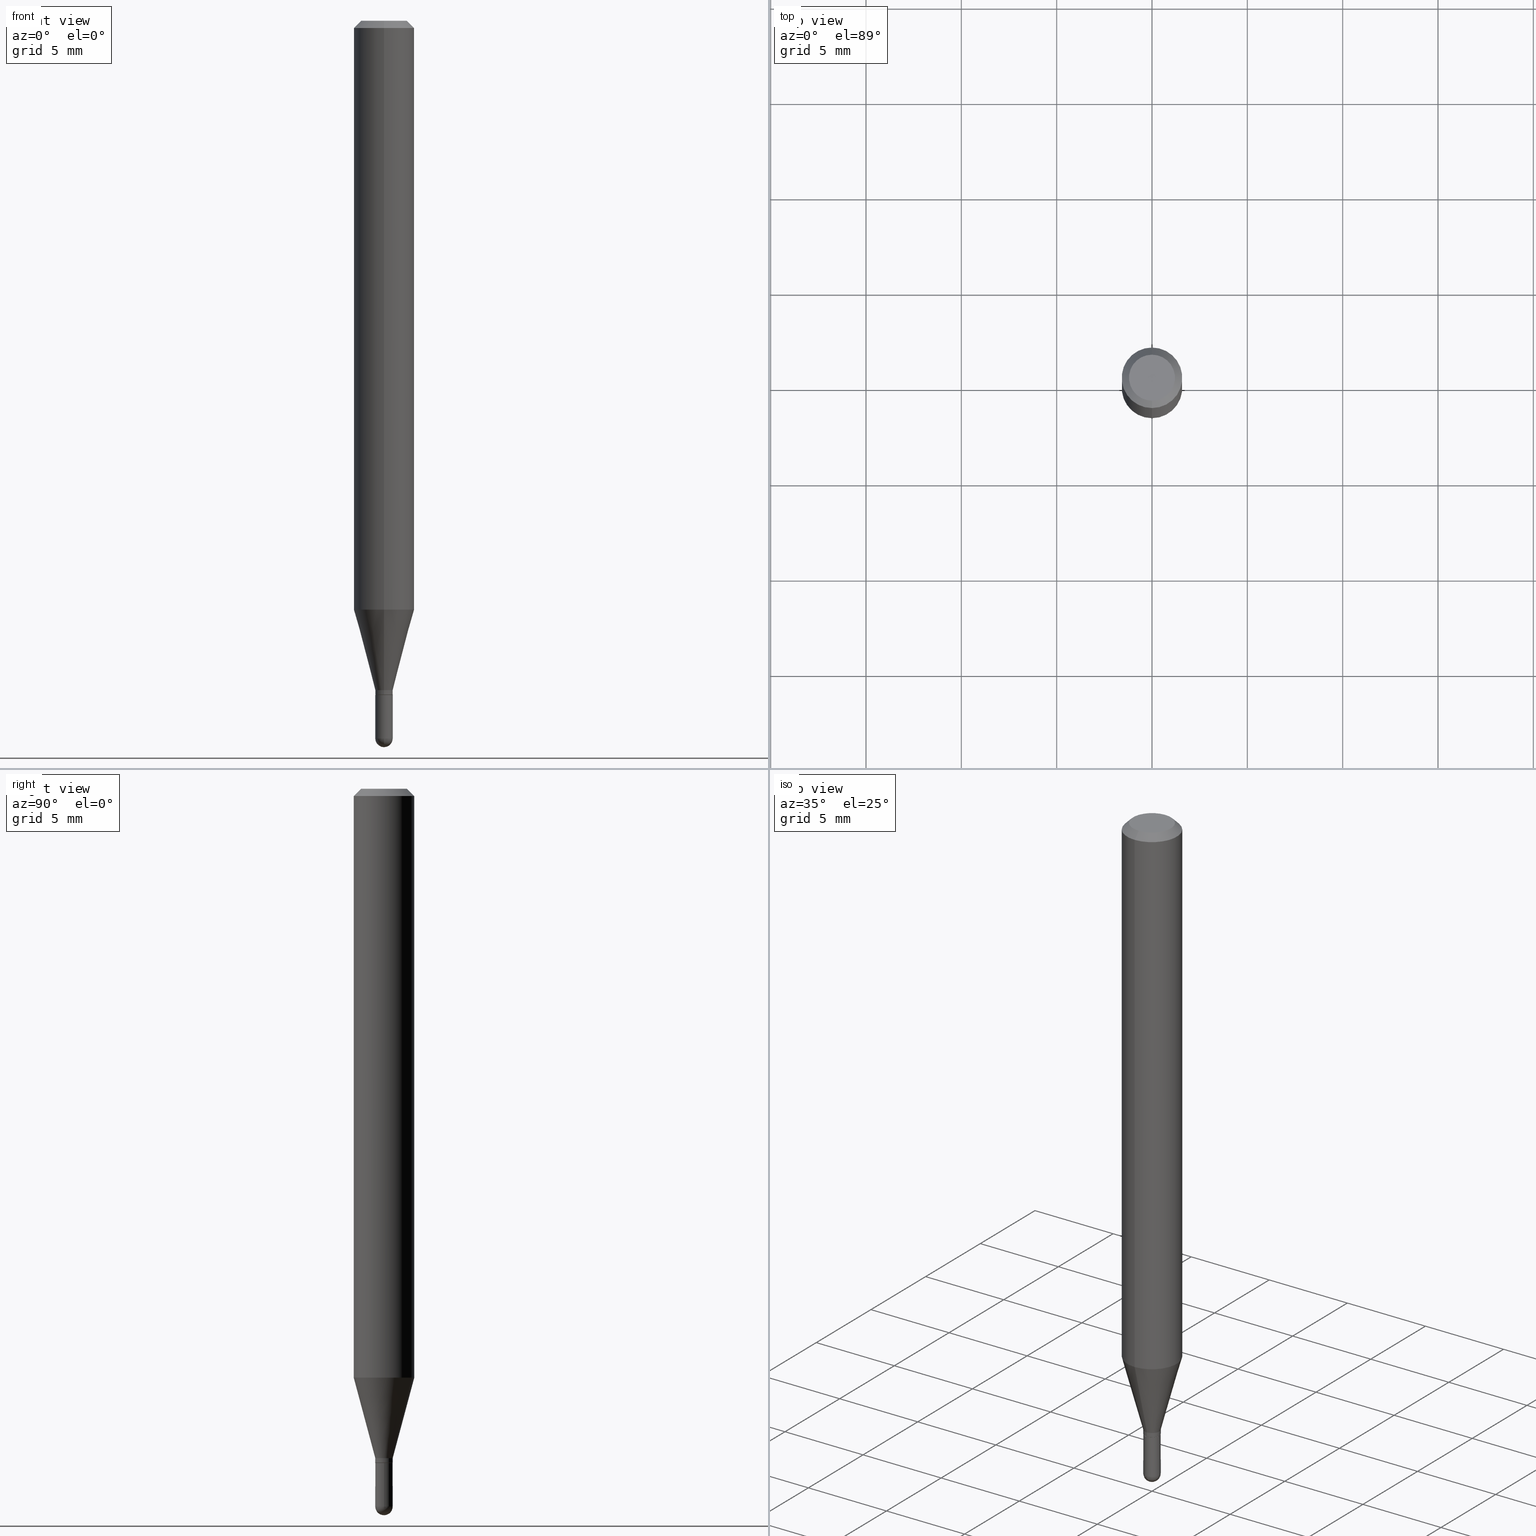
[diagram: canonical four-view strip — front | top / right | iso, engineering-drawing reading convention]
A machine part, canonical four-view strip (front | top / right | iso — engineering-drawing reading convention). The complete STEP part file that produces these views, byte-faithful:
ISO-10303-21;
HEADER;
FILE_DESCRIPTION (( 'STEP AP203' ),
    '1' );
FILE_NAME ('00474.STEP',
    '2024-03-07T17:59:20',
    ( '' ),
    ( '' ),
    'SwSTEP 2.0',
    'SolidWorks 2023',
    '' );
FILE_SCHEMA (( 'CONFIG_CONTROL_DESIGN' ));
ENDSEC;

DATA;
#1 = ORIENTED_EDGE ( 'NONE', *, *, #165, .F. ) ;
#2 = DIRECTION ( 'NONE',  ( -2.445468806185136597E-29, 3.491481338843145583E-15, 1.000000000000000000 ) ) ;
#3 = EDGE_CURVE ( 'NONE', #39, #217, #180, .T. ) ;
#4 = AXIS2_PLACEMENT_3D ( 'NONE', #68, #462, #223 ) ;
#5 = LINE ( 'NONE', #82, #200 ) ;
#6 = CARTESIAN_POINT ( 'NONE',  ( 0.000000000000000000, 0.000000000000000000, 0.000000000000000000 ) ) ;
#7 = AXIS2_PLACEMENT_3D ( 'NONE', #48, #290, #20 ) ;
#8 = LINE ( 'NONE', #375, #111 ) ;
#9 = ORIENTED_EDGE ( 'NONE', *, *, #18, .T. ) ;
#10 = APPROVAL ( #340, 'UNSPECIFIED' ) ;
#11 = DIRECTION ( 'NONE',  ( 1.000000000000000000, -6.982962677686266711E-15, 4.876176775795935232E-29 ) ) ;
#12 = VERTEX_POINT ( 'NONE', #381 ) ;
#13 = ORGANIZATION ( 'UNSPECIFIED', 'UNSPECIFIED', '' ) ;
#14 = DIRECTION ( 'NONE',  ( -2.445459386778568343E-29, 3.491494827969470629E-15, 1.000000000000000000 ) ) ;
#15 = ORIENTED_EDGE ( 'NONE', *, *, #495, .F. ) ;
#16 = CARTESIAN_POINT ( 'NONE',  ( 3.668189080167854844E-31, -5.237242241954208804E-17, -0.01500000000000000812 ) ) ;
#17 = ORIENTED_EDGE ( 'NONE', *, *, #75, .F. ) ;
#18 = EDGE_CURVE ( 'NONE', #358, #248, #92, .T. ) ;
#19 = CIRCLE ( 'NONE', #227, 0.04749999999999999362 ) ;
#20 = DIRECTION ( 'NONE',  ( -6.982962677686265922E-15, -1.000000000000000000, 3.491494827969470629E-15 ) ) ;
#21 = ORIENTED_EDGE ( 'NONE', *, *, #501, .T. ) ;
#22 = PERSON_AND_ORGANIZATION ( #396, #13 ) ;
#23 = CARTESIAN_POINT ( 'NONE',  ( 3.622645471445850223E-29, -5.176579708404007627E-15, -1.482000000000000206 ) ) ;
#24 = CARTESIAN_POINT ( 'NONE',  ( 3.668189080167854844E-31, -5.237242241954208804E-17, -0.01500000000000000812 ) ) ;
#25 = COORDINATED_UNIVERSAL_TIME_OFFSET ( 5, 0, .BEHIND. ) ;
#26 = DIRECTION ( 'NONE',  ( -2.445468806185136597E-29, 3.491481338843145583E-15, 1.000000000000000000 ) ) ;
#27 = DATE_AND_TIME ( #301, #427 ) ;
#28 = DIRECTION ( 'NONE',  ( -6.982962677686265922E-15, -1.000000000000000000, 4.370956789862821150E-15 ) ) ;
#29 = APPROVAL_ROLE ( '' ) ;
#30 = AXIS2_PLACEMENT_3D ( 'NONE', #357, #2, #11 ) ;
#31 = DIRECTION ( 'NONE',  ( -2.445459386778568343E-29, 3.491494827969470629E-15, 1.000000000000000000 ) ) ;
#32 = CIRCLE ( 'NONE', #154, 0.01799999999999999517 ) ;
#33 = CARTESIAN_POINT ( 'NONE',  ( 3.404079466395767039E-29, -4.860160800533503009E-15, -1.392000000000000126 ) ) ;
#34 = CARTESIAN_POINT ( 'NONE',  ( 1.261213355974515202E-16, 0.01749999999999514097, -1.392000000000000126 ) ) ;
#35 = ORIENTED_EDGE ( 'NONE', *, *, #54, .F. ) ;
#36 = EDGE_CURVE ( 'NONE', #133, #316, #19, .T. ) ;
#37 = DIRECTION ( 'NONE',  ( -6.982962677686265133E-15, -1.000000000000000000, 3.491494827969470629E-15 ) ) ;
#38 = AXIS2_PLACEMENT_3D ( 'NONE', #179, #211, #334 ) ;
#39 = VERTEX_POINT ( 'NONE', #145 ) ;
#40 = DIRECTION ( 'NONE',  ( -6.982962677686265922E-15, -1.000000000000000000, 0.000000000000000000 ) ) ;
#41 = ORIENTED_EDGE ( 'NONE', *, *, #107, .F. ) ;
#42 = AXIS2_PLACEMENT_3D ( 'NONE', #341, #338, #431 ) ;
#43 = DIRECTION ( 'NONE',  ( -6.982962677686265133E-15, -1.000000000000000000, 0.000000000000000000 ) ) ;
#44 = CARTESIAN_POINT ( 'NONE',  ( 3.668189080167854844E-31, -5.237242241954208804E-17, -0.01500000000000000812 ) ) ;
#45 = AXIS2_PLACEMENT_3D ( 'NONE', #397, #360, #317 ) ;
#46 = EDGE_LOOP ( 'NONE', ( #126, #492, #318, #17 ) ) ;
#47 = EDGE_CURVE ( 'NONE', #12, #490, #269, .T. ) ;
#48 = CARTESIAN_POINT ( 'NONE',  ( 3.404079466395767039E-29, -4.860160800533503009E-15, -1.392000000000000126 ) ) ;
#49 = DIRECTION ( 'NONE',  ( -2.445459386778568343E-29, 3.491494827969470629E-15, 1.000000000000000000 ) ) ;
#50 = CIRCLE ( 'NONE', #4, 0.01799999999999999517 ) ;
#51 = DIRECTION ( 'NONE',  ( 1.000000000000000000, -6.982962677686280121E-15, 0.000000000000000000 ) ) ;
#52 = ORIENTED_EDGE ( 'NONE', *, *, #102, .T. ) ;
#53 = CONICAL_SURFACE ( 'NONE', #373, 0.06250000000000000000, 0.7853981633974483900 ) ;
#54 = EDGE_CURVE ( 'NONE', #133, #217, #426, .T. ) ;
#55 = DIRECTION ( 'NONE',  ( -2.445459386778568343E-29, 3.491494827969470629E-15, 1.000000000000000000 ) ) ;
#56 = ORIENTED_EDGE ( 'NONE', *, *, #205, .F. ) ;
#57 = VECTOR ( 'NONE', #166, 39.37007874015748143 ) ;
#58 = DIRECTION ( 'NONE',  ( -2.445468806185136597E-29, 3.491481338843145583E-15, 1.000000000000000000 ) ) ;
#59 = ORIENTED_EDGE ( 'NONE', *, *, #382, .T. ) ;
#60 = ORIENTED_EDGE ( 'NONE', *, *, #64, .T. ) ;
#61 = DATE_AND_TIME ( #103, #487 ) ;
#62 = AXIS2_PLACEMENT_3D ( 'NONE', #298, #324, #458 ) ;
#63 = CARTESIAN_POINT ( 'NONE',  ( 3.402856736702377840E-29, -4.858415053119519559E-15, -1.391500000000000181 ) ) ;
#64 = EDGE_CURVE ( 'NONE', #291, #39, #439, .T. ) ;
#65 = PERSON_AND_ORGANIZATION ( #396, #13 ) ;
#66 = DIRECTION ( 'NONE',  ( -6.982962677686265133E-15, -1.000000000000000000, 0.000000000000000000 ) ) ;
#67 = PERSON_AND_ORGANIZATION_ROLE ( 'classification_officer' ) ;
#68 = CARTESIAN_POINT ( 'NONE',  ( 3.624184770766373010E-29, -5.174375344165542471E-15, -1.482000000000000206 ) ) ;
#69 = EDGE_CURVE ( 'NONE', #274, #459, #50, .T. ) ;
#70 = DIRECTION ( 'NONE',  ( -6.982962677686265922E-15, -1.000000000000000000, 0.000000000000000000 ) ) ;
#71 = CONICAL_SURFACE ( 'NONE', #157, 0.01799999999999992231, 0.2617993877991502960 ) ;
#72 = DIRECTION ( 'NONE',  ( 1.000000000000000000, -6.982962677686279332E-15, 0.000000000000000000 ) ) ;
#73 = CARTESIAN_POINT ( 'NONE',  ( 3.622645471445850223E-29, -5.176579708404007627E-15, -1.482000000000000206 ) ) ;
#74 = DIMENSIONAL_EXPONENTS ( 1.000000000000000000, 0.000000000000000000, 0.000000000000000000, 0.000000000000000000, 0.000000000000000000, 0.000000000000000000, 0.000000000000000000 ) ;
#75 = EDGE_CURVE ( 'NONE', #206, #479, #101, .T. ) ;
#76 = FACE_OUTER_BOUND ( 'NONE', #137, .T. ) ;
#77 = ORIENTED_EDGE ( 'NONE', *, *, #278, .T. ) ;
#78 = PLANE ( 'NONE',  #45 ) ;
#79 = AXIS2_PLACEMENT_3D ( 'NONE', #98, #94, #254 ) ;
#80 = ORIENTED_EDGE ( 'NONE', *, *, #54, .T. ) ;
#81 = ADVANCED_FACE ( 'NONE', ( #350 ), #359, .T. ) ;
#82 = CARTESIAN_POINT ( 'NONE',  ( -4.287811248607203282E-16, -0.06250000000000005551, -0.01499999999999979128 ) ) ;
#83 = ORIENTED_EDGE ( 'NONE', *, *, #354, .F. ) ;
#84 = CARTESIAN_POINT ( 'NONE',  ( 3.404079466395767039E-29, -4.860160800533503009E-15, -1.392000000000000126 ) ) ;
#85 = ADVANCED_FACE ( 'NONE', ( #461 ), #104, .F. ) ;
#86 = ORIENTED_EDGE ( 'NONE', *, *, #36, .F. ) ;
#87 = CC_DESIGN_APPROVAL ( #440, ( #344 ) ) ;
#88 = DIRECTION ( 'NONE',  ( -6.982962677686265922E-15, -1.000000000000000000, 0.000000000000000000 ) ) ;
#89 = ORIENTED_EDGE ( 'NONE', *, *, #463, .T. ) ;
#90 = PLANE ( 'NONE',  #7 ) ;
#91 = ORIENTED_EDGE ( 'NONE', *, *, #64, .F. ) ;
#92 = CIRCLE ( 'NONE', #352, 0.01799999999999995701 ) ;
#93 = EDGE_CURVE ( 'NONE', #479, #12, #367, .T. ) ;
#94 = DIRECTION ( 'NONE',  ( -2.445459386778568343E-29, 3.491494827969470629E-15, 1.000000000000000000 ) ) ;
#95 = ORIENTED_EDGE ( 'NONE', *, *, #310, .F. ) ;
#96 = DIRECTION ( 'NONE',  ( -6.982962677686266711E-15, -1.000000000000000000, 3.491494827969471024E-15 ) ) ;
#97 = EDGE_LOOP ( 'NONE', ( #244, #239, #160, #421 ) ) ;
#98 = CARTESIAN_POINT ( 'NONE',  ( 3.379624872527981378E-29, -4.825245852253809549E-15, -1.382000000000000117 ) ) ;
#99 = CARTESIAN_POINT ( 'NONE',  ( 4.440892098500625669E-16, 0.06250000000000000000, -2.182184267480919143E-16 ) ) ;
#100 = LENGTH_MEASURE_WITH_UNIT ( LENGTH_MEASURE( 0.02539999999999999897 ), #247 );
#101 = LINE ( 'NONE', #229, #413 ) ;
#102 = EDGE_CURVE ( 'NONE', #248, #274, #32, .T. ) ;
#103 = CALENDAR_DATE ( 2024, 7, 3 ) ;
#104 = PLANE ( 'NONE',  #187 ) ;
#105 = APPLICATION_PROTOCOL_DEFINITION ( 'international standard', 'config_control_design', 1994, #134 ) ;
#106 = CARTESIAN_POINT ( 'NONE',  ( 3.622645471445850223E-29, -5.176579708404007627E-15, -1.482000000000000206 ) ) ;
#107 = EDGE_CURVE ( 'NONE', #490, #39, #264, .T. ) ;
#108 = DATE_TIME_ROLE ( 'classification_date' ) ;
#109 = DIRECTION ( 'NONE',  ( 6.982962677686265922E-15, 1.000000000000000000, -3.483106191921935554E-15 ) ) ;
#110 = LINE ( 'NONE', #150, #252 ) ;
#111 = VECTOR ( 'NONE', #258, 39.37007874015748143 ) ;
#112 = VECTOR ( 'NONE', #196, 39.37007874015748143 ) ;
#113 = CARTESIAN_POINT ( 'NONE',  ( 0.000000000000000000, 0.000000000000000000, 0.000000000000000000 ) ) ;
#114 = APPROVAL ( #422, 'UNSPECIFIED' ) ;
#115 = EDGE_LOOP ( 'NONE', ( #83, #320 ) ) ;
#116 = CARTESIAN_POINT ( 'NONE',  ( 0.000000000000000000, 0.000000000000000000, 0.000000000000000000 ) ) ;
#117 = CARTESIAN_POINT ( 'NONE',  ( -0.01799999999999999517, -4.889360991480781903E-15, -1.482000000000000206 ) ) ;
#118 = ORIENTED_EDGE ( 'NONE', *, *, #444, .T. ) ;
#119 = CIRCLE ( 'NONE', #398, 0.06250000000000000000 ) ;
#120 = DIRECTION ( 'NONE',  ( -2.445459386778568343E-29, 3.491494827969470629E-15, 1.000000000000000000 ) ) ;
#121 = AXIS2_PLACEMENT_3D ( 'NONE', #33, #162, #40 ) ;
#122 = ORIENTED_EDGE ( 'NONE', *, *, #278, .F. ) ;
#123 = CC_DESIGN_PERSON_AND_ORGANIZATION_ASSIGNMENT ( #498, #67, ( #213 ) ) ;
#124 = DIRECTION ( 'NONE',  ( -2.445468806185136597E-29, 3.491481338843145583E-15, 1.000000000000000000 ) ) ;
#125 = AXIS2_PLACEMENT_3D ( 'NONE', #6, #120, #243 ) ;
#126 = ORIENTED_EDGE ( 'NONE', *, *, #354, .T. ) ;
#127 = AXIS2_PLACEMENT_3D ( 'NONE', #63, #393, #70 ) ;
#128 = DIRECTION ( 'NONE',  ( -2.445459386778568343E-29, 3.491494827969470629E-15, 1.000000000000000000 ) ) ;
#129 = VERTEX_POINT ( 'NONE', #309 ) ;
#130 = DIRECTION ( 'NONE',  ( -6.982962677686265922E-15, -1.000000000000000000, 0.000000000000000000 ) ) ;
#131 = MANIFOLD_SOLID_BREP ( 'Body-Move/Copy2[1]', #478 ) ;
#132 = AXIS2_PLACEMENT_3D ( 'NONE', #295, #128, #286 ) ;
#133 = VERTEX_POINT ( 'NONE', #429 ) ;
#134 = APPLICATION_CONTEXT ( 'configuration controlled 3d designs of mechanical parts and assemblies' ) ;
#135 = EDGE_CURVE ( 'NONE', #129, #366, #403, .T. ) ;
#136 = CARTESIAN_POINT ( 'NONE',  ( 2.859934511434718867E-16, 0.01799999999999509631, -1.382000000000000117 ) ) ;
#137 = EDGE_LOOP ( 'NONE', ( #122, #329, #21, #364, #379 ) ) ;
#138 = AXIS2_PLACEMENT_3D ( 'NONE', #24, #267, #109 ) ;
#139 = CARTESIAN_POINT ( 'NONE',  ( 3.402856736702377840E-29, -4.858415053119519559E-15, -1.391500000000000181 ) ) ;
#140 = ORIENTED_EDGE ( 'NONE', *, *, #382, .F. ) ;
#141 = CYLINDRICAL_SURFACE ( 'NONE', #475, 0.06250000000000000000 ) ;
#142 = ORIENTED_EDGE ( 'NONE', *, *, #420, .T. ) ;
#143 = ADVANCED_FACE ( 'NONE', ( #471 ), #161, .T. ) ;
#144 = DATE_AND_TIME ( #183, #504 ) ;
#145 = CARTESIAN_POINT ( 'NONE',  ( 4.440892098500920998E-16, 0.06249999999999573952, -1.215923739063185627 ) ) ;
#146 = APPROVAL_DATE_TIME ( #61, #10 ) ;
#147 = LINE ( 'NONE', #346, #168 ) ;
#148 = PERSON_AND_ORGANIZATION ( #396, #13 ) ;
#149 = LOCAL_TIME ( 12, 59, 20.00000000000000000, #263 ) ;
#150 = CARTESIAN_POINT ( 'NONE',  ( -1.256933281983522259E-16, -0.01799999999999992231, 6.284690690345019750E-17 ) ) ;
#151 = CC_DESIGN_PERSON_AND_ORGANIZATION_ASSIGNMENT ( #65, #222, ( #240 ) ) ;
#152 = APPROVAL_STATUS ( 'not_yet_approved' ) ;
#153 = DIRECTION ( 'NONE',  ( 6.982962677686265922E-15, 1.000000000000000000, -3.491494827969470629E-15 ) ) ;
#154 = AXIS2_PLACEMENT_3D ( 'NONE', #507, #26, #385 ) ;
#155 = CARTESIAN_POINT ( 'NONE',  ( 2.973492121298961369E-29, -4.245391446144412231E-15, -1.215923739063185405 ) ) ;
#156 = CARTESIAN_POINT ( 'NONE',  ( -3.773273898774340269E-16, -0.04749999999999999362, 1.569863254702192129E-16 ) ) ;
#157 = AXIS2_PLACEMENT_3D ( 'NONE', #482, #273, #474 ) ;
#158 = EDGE_CURVE ( 'NONE', #358, #459, #203, .T. ) ;
#159 = FACE_OUTER_BOUND ( 'NONE', #255, .T. ) ;
#160 = ORIENTED_EDGE ( 'NONE', *, *, #69, .F. ) ;
#161 = CONICAL_SURFACE ( 'NONE', #432, 0.01799999999999992231, 0.2617993877991502960 ) ;
#162 = DIRECTION ( 'NONE',  ( -2.445459386778568343E-29, 3.491494827969470629E-15, 1.000000000000000000 ) ) ;
#163 = CARTESIAN_POINT ( 'NONE',  ( -0.01799999999999999864, 1.278976924368180238E-16, -8.854083162458829188E-31 ) ) ;
#164 = APPROVAL_PERSON_ORGANIZATION ( #22, #114, #220 ) ;
#165 = EDGE_CURVE ( 'NONE', #479, #300, #110, .T. ) ;
#166 = DIRECTION ( 'NONE',  ( 5.024295867788190974E-15, 0.7071067811865681119, 0.7071067811865270336 ) ) ;
#167 = DIRECTION ( 'NONE',  ( -2.445459386778568343E-29, 3.491494827969470629E-15, 1.000000000000000000 ) ) ;
#168 = VECTOR ( 'NONE', #506, 39.37007874015748143 ) ;
#169 = ORIENTED_EDGE ( 'NONE', *, *, #189, .F. ) ;
#170 = ADVANCED_FACE ( 'NONE', ( #235 ), #184, .T. ) ;
#171 = DIRECTION ( 'NONE',  ( -6.982962677686265922E-15, -1.000000000000000000, 3.491494827969470629E-15 ) ) ;
#172 = EDGE_LOOP ( 'NONE', ( #281, #142, #221, #15 ) ) ;
#173 = CARTESIAN_POINT ( 'NONE',  ( 3.667433559617443502E-29, -5.238324190383952333E-15, -1.500000000000000222 ) ) ;
#174 = AXIS2_PLACEMENT_3D ( 'NONE', #113, #124, #448 ) ;
#175 = ORIENTED_EDGE ( 'NONE', *, *, #205, .T. ) ;
#176 = FACE_OUTER_BOUND ( 'NONE', #115, .T. ) ;
#177 = ORIENTED_EDGE ( 'NONE', *, *, #444, .F. ) ;
#178 = AXIS2_PLACEMENT_3D ( 'NONE', #503, #186, #467 ) ;
#179 = CARTESIAN_POINT ( 'NONE',  ( 3.668189080167854844E-31, -5.237242241954208804E-17, -0.01500000000000000812 ) ) ;
#180 = LINE ( 'NONE', #99, #250 ) ;
#181 = EDGE_CURVE ( 'NONE', #39, #291, #219, .T. ) ;
#182 = VECTOR ( 'NONE', #167, 39.37007874015748143 ) ;
#183 = CALENDAR_DATE ( 2024, 7, 3 ) ;
#184 = SPHERICAL_SURFACE ( 'NONE', #270, 0.01799999999999995701 ) ;
#185 = PERSON_AND_ORGANIZATION_ROLE ( 'design_owner' ) ;
#186 = DIRECTION ( 'NONE',  ( -1.000000000000000000, 7.105427357601001070E-15, -4.926315508542082329E-29 ) ) ;
#187 = AXIS2_PLACEMENT_3D ( 'NONE', #386, #232, #153 ) ;
#188 = APPROVAL_DATE_TIME ( #225, #440 ) ;
#189 = EDGE_CURVE ( 'NONE', #335, #366, #147, .T. ) ;
#190 = CARTESIAN_POINT ( 'NONE',  ( 1.278976924368512546E-16, 0.01799999999999509631, -1.382000000000000117 ) ) ;
#191 = APPROVAL_ROLE ( '' ) ;
#192 = DIRECTION ( 'NONE',  ( 4.937700262164548042E-15, 0.7071067811865451302, -0.7071067811865499042 ) ) ;
#193 = CIRCLE ( 'NONE', #259, 0.04749999999999999362 ) ;
#194 = CALENDAR_DATE ( 2024, 7, 3 ) ;
#195 = CARTESIAN_POINT ( 'NONE',  ( 3.404092578209710223E-29, -4.860142023669658418E-15, -1.392000000000000126 ) ) ;
#196 = DIRECTION ( 'NONE',  ( -2.445468806185136877E-29, 3.491481338843145188E-15, 1.000000000000000000 ) ) ;
#197 = ADVANCED_FACE ( 'NONE', ( #304 ), #434, .T. ) ;
#198 = CARTESIAN_POINT ( 'NONE',  ( 0.01799999999999999517, -5.142952012115953829E-15, -1.482000000000000206 ) ) ;
#199 = EDGE_LOOP ( 'NONE', ( #95, #86, #80, #246 ) ) ;
#200 = VECTOR ( 'NONE', #511, 39.37007874015748143 ) ;
#201 = FACE_OUTER_BOUND ( 'NONE', #293, .T. ) ;
#202 = ORIENTED_EDGE ( 'NONE', *, *, #463, .F. ) ;
#203 = CIRCLE ( 'NONE', #178, 0.01799999999999995701 ) ;
#204 = FACE_OUTER_BOUND ( 'NONE', #212, .T. ) ;
#205 = EDGE_CURVE ( 'NONE', #366, #129, #332, .T. ) ;
#206 = VERTEX_POINT ( 'NONE', #445 ) ;
#207 = DIRECTION ( 'NONE',  ( -6.982962677686265922E-15, -1.000000000000000000, 0.000000000000000000 ) ) ;
#208 = ORIENTED_EDGE ( 'NONE', *, *, #3, .F. ) ;
#209 = DIRECTION ( 'NONE',  ( -2.445459386778568343E-29, 3.491494827969470629E-15, 1.000000000000000000 ) ) ;
#210 = ORIENTED_EDGE ( 'NONE', *, *, #287, .F. ) ;
#211 = DIRECTION ( 'NONE',  ( -2.445459386778568343E-29, 3.491494827969470629E-15, 1.000000000000000000 ) ) ;
#212 = EDGE_LOOP ( 'NONE', ( #175, #455 ) ) ;
#213 = SECURITY_CLASSIFICATION ( '', '', #261 ) ;
#214 = CARTESIAN_POINT ( 'NONE',  ( -1.278976924367816376E-16, -0.01800000000000515077, -1.482000000000000206 ) ) ;
#215 = ORIENTED_EDGE ( 'NONE', *, *, #481, .T. ) ;
#216 = CARTESIAN_POINT ( 'NONE',  ( 0.01799999999999999864, -4.985835351868011408E-15, -1.392000000000000126 ) ) ;
#217 = VERTEX_POINT ( 'NONE', #285 ) ;
#218 = ADVANCED_FACE ( 'NONE', ( #76 ), #399, .T. ) ;
#219 = CIRCLE ( 'NONE', #42, 0.06250000000000000000 ) ;
#220 = APPROVAL_ROLE ( '' ) ;
#221 = ORIENTED_EDGE ( 'NONE', *, *, #75, .T. ) ;
#222 = PERSON_AND_ORGANIZATION_ROLE ( 'creator' ) ;
#223 = DIRECTION ( 'NONE',  ( 1.000000000000000000, -6.982962677686280121E-15, 0.000000000000000000 ) ) ;
#224 = ADVANCED_FACE ( 'NONE', ( #279 ), #71, .T. ) ;
#225 = DATE_AND_TIME ( #311, #418 ) ;
#226 = DIRECTION ( 'NONE',  ( -4.937700262164674260E-15, -0.7071067811865632269, 0.7071067811865319186 ) ) ;
#227 = AXIS2_PLACEMENT_3D ( 'NONE', #411, #49, #499 ) ;
#228 = COORDINATED_UNIVERSAL_TIME_OFFSET ( 5, 0, .BEHIND. ) ;
#229 = CARTESIAN_POINT ( 'NONE',  ( -1.222018468594755936E-16, -0.01750000000000485889, -1.392000000000000126 ) ) ;
#230 =( CONVERSION_BASED_UNIT ( 'INCH', #100 ) LENGTH_UNIT ( ) NAMED_UNIT ( #74 ) );
#231 = CC_DESIGN_SECURITY_CLASSIFICATION ( #213, ( #344 ) ) ;
#232 = DIRECTION ( 'NONE',  ( 2.445459386778568062E-29, -3.491494827969470629E-15, -1.000000000000000000 ) ) ;
#233 = AXIS2_PLACEMENT_3D ( 'NONE', #116, #276, #37 ) ;
#234 = PRODUCT_DEFINITION_SHAPE ( 'NONE', 'NONE',  #240 ) ;
#235 = FACE_OUTER_BOUND ( 'NONE', #438, .T. ) ;
#236 = ADVANCED_FACE ( 'NONE', ( #355 ), #512, .T. ) ;
#237 = DIRECTION ( 'NONE',  ( 6.982962677686265922E-15, 1.000000000000000000, 0.000000000000000000 ) ) ;
#238 = LINE ( 'NONE', #163, #112 ) ;
#239 = ORIENTED_EDGE ( 'NONE', *, *, #158, .T. ) ;
#240 = PRODUCT_DEFINITION ( 'UNKNOWN', '', #344, #383 ) ;
#241 = DIRECTION ( 'NONE',  ( -2.445468806185136597E-29, 3.491481338843145583E-15, 1.000000000000000000 ) ) ;
#242 = ORIENTED_EDGE ( 'NONE', *, *, #430, .T. ) ;
#243 = DIRECTION ( 'NONE',  ( -6.982962677686265133E-15, -1.000000000000000000, 3.491494827969470629E-15 ) ) ;
#244 = ORIENTED_EDGE ( 'NONE', *, *, #18, .F. ) ;
#245 = CARTESIAN_POINT ( 'NONE',  ( 3.404092578209710223E-29, -4.860142023669658418E-15, -1.392000000000000126 ) ) ;
#246 = ORIENTED_EDGE ( 'NONE', *, *, #389, .T. ) ;
#247 =( LENGTH_UNIT ( ) NAMED_UNIT ( * ) SI_UNIT ( $, .METRE. ) );
#248 = VERTEX_POINT ( 'NONE', #319 ) ;
#249 = ADVANCED_FACE ( 'NONE', ( #509 ), #321, .T. ) ;
#250 = VECTOR ( 'NONE', #262, 39.37007874015748143 ) ;
#251 = DIRECTION ( 'NONE',  ( -2.445459386778568343E-29, 3.491494827969470629E-15, 1.000000000000000000 ) ) ;
#252 = VECTOR ( 'NONE', #31, 39.37007874015748143 ) ;
#253 = ORIENTED_EDGE ( 'NONE', *, *, #165, .T. ) ;
#254 = DIRECTION ( 'NONE',  ( -6.982962677686265133E-15, -1.000000000000000000, 0.000000000000000000 ) ) ;
#255 = EDGE_LOOP ( 'NONE', ( #260, #415, #210, #1 ) ) ;
#256 = AXIS2_PLACEMENT_3D ( 'NONE', #139, #209, #88 ) ;
#257 = CC_DESIGN_PERSON_AND_ORGANIZATION_ASSIGNMENT ( #342, #308, ( #344 ) ) ;
#258 = DIRECTION ( 'NONE',  ( -1.807323732225330139E-15, -0.2588190451025181860, 0.9659258262890689783 ) ) ;
#259 = AXIS2_PLACEMENT_3D ( 'NONE', #416, #55, #96 ) ;
#260 = ORIENTED_EDGE ( 'NONE', *, *, #93, .T. ) ;
#261 = SECURITY_CLASSIFICATION_LEVEL ( 'unclassified' ) ;
#262 = DIRECTION ( 'NONE',  ( -2.445459386778568343E-29, 3.491494827969470629E-15, 1.000000000000000000 ) ) ;
#263 = COORDINATED_UNIVERSAL_TIME_OFFSET ( 5, 0, .BEHIND. ) ;
#264 = LINE ( 'NONE', #190, #351 ) ;
#265 = PRODUCT_RELATED_PRODUCT_CATEGORY ( 'detail', '', ( #395 ) ) ;
#266 =( NAMED_UNIT ( * ) SI_UNIT ( $, .STERADIAN. ) SOLID_ANGLE_UNIT ( ) );
#267 = DIRECTION ( 'NONE',  ( 2.445459386778568343E-29, -3.491494827969470629E-15, -1.000000000000000000 ) ) ;
#268 = APPLICATION_PROTOCOL_DEFINITION ( 'international standard', 'config_control_design', 1994, #347 ) ;
#269 = LINE ( 'NONE', #312, #485 ) ;
#270 = AXIS2_PLACEMENT_3D ( 'NONE', #106, #502, #390 ) ;
#271 = CARTESIAN_POINT ( 'NONE',  ( 3.379624872527981378E-29, -4.825245852253809549E-15, -1.382000000000000117 ) ) ;
#272 = DIRECTION ( 'NONE',  ( -2.445459386778568343E-29, 3.491494827969470629E-15, 1.000000000000000000 ) ) ;
#273 = DIRECTION ( 'NONE',  ( -2.445459386778568343E-29, 3.491494827969470629E-15, 1.000000000000000000 ) ) ;
#274 = VERTEX_POINT ( 'NONE', #117 ) ;
#275 = VECTOR ( 'NONE', #192, 39.37007874015748143 ) ;
#276 = DIRECTION ( 'NONE',  ( -2.445459386778568343E-29, 3.491494827969470629E-15, 1.000000000000000000 ) ) ;
#277 = ORIENTED_EDGE ( 'NONE', *, *, #47, .F. ) ;
#278 = EDGE_CURVE ( 'NONE', #274, #129, #238, .T. ) ;
#279 = FACE_OUTER_BOUND ( 'NONE', #327, .T. ) ;
#280 =( GEOMETRIC_REPRESENTATION_CONTEXT ( 3 ) GLOBAL_UNCERTAINTY_ASSIGNED_CONTEXT ( ( #297 ) ) GLOBAL_UNIT_ASSIGNED_CONTEXT ( ( #230, #384, #266 ) ) REPRESENTATION_CONTEXT ( 'NONE', 'WORKASPACE' ) );
#281 = ORIENTED_EDGE ( 'NONE', *, *, #315, .F. ) ;
#282 = CIRCLE ( 'NONE', #356, 0.01799999999999999517 ) ;
#283 = CARTESIAN_POINT ( 'NONE',  ( 3.379624872527981378E-29, -4.825245852253809549E-15, -1.382000000000000117 ) ) ;
#284 = ORIENTED_EDGE ( 'NONE', *, *, #3, .T. ) ;
#285 = CARTESIAN_POINT ( 'NONE',  ( 4.440892098500924943E-16, 0.06249999999999993755, -0.01500000000000022669 ) ) ;
#286 = DIRECTION ( 'NONE',  ( -6.982962677686265922E-15, -1.000000000000000000, 0.000000000000000000 ) ) ;
#287 = EDGE_CURVE ( 'NONE', #300, #490, #410, .T. ) ;
#288 = DIRECTION ( 'NONE',  ( 6.982962677686266711E-15, 1.000000000000000000, 0.000000000000000000 ) ) ;
#289 = AXIS2_PLACEMENT_3D ( 'NONE', #283, #353, #43 ) ;
#290 = DIRECTION ( 'NONE',  ( -2.445459386778568062E-29, 3.491494827969470629E-15, 1.000000000000000000 ) ) ;
#291 = VERTEX_POINT ( 'NONE', #443 ) ;
#292 = CARTESIAN_POINT ( 'NONE',  ( -4.364351673553912750E-16, -0.06250000000000005551, -0.01499999999999979128 ) ) ;
#293 = EDGE_LOOP ( 'NONE', ( #52, #77, #56, #169, #59 ) ) ;
#294 = ADVANCED_FACE ( 'NONE', ( #204 ), #78, .F. ) ;
#295 = CARTESIAN_POINT ( 'NONE',  ( 3.404079466395767039E-29, -4.860160800533503009E-15, -1.392000000000000126 ) ) ;
#296 = EDGE_LOOP ( 'NONE', ( #177, #417, #215, #35 ) ) ;
#297 = UNCERTAINTY_MEASURE_WITH_UNIT (LENGTH_MEASURE( 1.000000000000000082E-05 ), #230, 'distance_accuracy_value', 'NONE');
#298 = CARTESIAN_POINT ( 'NONE',  ( 3.624184770766373010E-29, -5.174375344165542471E-15, -1.482000000000000206 ) ) ;
#299 = AXIS2_PLACEMENT_3D ( 'NONE', #371, #326, #408 ) ;
#300 = VERTEX_POINT ( 'NONE', #437 ) ;
#301 = CALENDAR_DATE ( 2024, 7, 3 ) ;
#302 = CARTESIAN_POINT ( 'NONE',  ( 4.364351673553919652E-16, 0.06249999999999995143, -0.01500000000000022669 ) ) ;
#303 = CARTESIAN_POINT ( 'NONE',  ( 0.000000000000000000, 0.000000000000000000, 0.000000000000000000 ) ) ;
#304 = FACE_OUTER_BOUND ( 'NONE', #402, .T. ) ;
#305 = APPROVAL_PERSON_ORGANIZATION ( #466, #10, #191 ) ;
#306 = DIRECTION ( 'NONE',  ( -2.445459386778568343E-29, 3.491494827969470629E-15, 1.000000000000000000 ) ) ;
#307 = CIRCLE ( 'NONE', #79, 0.01799999999999992231 ) ;
#308 = PERSON_AND_ORGANIZATION_ROLE ( 'design_supplier' ) ;
#309 = CARTESIAN_POINT ( 'NONE',  ( -0.01799999999999999864, -4.889360991480781903E-15, -1.392000000000000126 ) ) ;
#310 = EDGE_CURVE ( 'NONE', #316, #494, #5, .T. ) ;
#311 = CALENDAR_DATE ( 2024, 7, 3 ) ;
#312 = CARTESIAN_POINT ( 'NONE',  ( 1.278976924368174568E-16, 0.01799999999999992231, -6.284690690345019750E-17 ) ) ;
#313 = SPHERICAL_SURFACE ( 'NONE', #374, 0.01799999999999995701 ) ;
#314 = CYLINDRICAL_SURFACE ( 'NONE', #233, 0.01799999999999992231 ) ;
#315 = EDGE_CURVE ( 'NONE', #333, #12, #404, .T. ) ;
#316 = VERTEX_POINT ( 'NONE', #156 ) ;
#317 = DIRECTION ( 'NONE',  ( -1.000000000000000000, 6.982962677686265922E-15, -4.876176775795935793E-29 ) ) ;
#318 = ORIENTED_EDGE ( 'NONE', *, *, #93, .F. ) ;
#319 = CARTESIAN_POINT ( 'NONE',  ( 1.256933281983888586E-16, 0.01799999999999480488, -1.482000000000000206 ) ) ;
#320 = ORIENTED_EDGE ( 'NONE', *, *, #420, .F. ) ;
#321 = CONICAL_SURFACE ( 'NONE', #121, 0.01749999999999999820, 0.7853981633974739252 ) ;
#322 = FACE_OUTER_BOUND ( 'NONE', #97, .T. ) ;
#323 = ADVANCED_FACE ( 'NONE', ( #322 ), #313, .T. ) ;
#324 = DIRECTION ( 'NONE',  ( -2.445468806185136597E-29, 3.491481338843145583E-15, 1.000000000000000000 ) ) ;
#325 = DIRECTION ( 'NONE',  ( 1.000000000000000000, -6.982962677686265922E-15, 4.883557194083112340E-29 ) ) ;
#326 = DIRECTION ( 'NONE',  ( -2.445459386778568343E-29, 3.491494827969470629E-15, 1.000000000000000000 ) ) ;
#327 = EDGE_LOOP ( 'NONE', ( #400, #361, #91, #202 ) ) ;
#328 = CARTESIAN_POINT ( 'NONE',  ( -4.364351673553916201E-16, -0.06250000000000000000, 2.182184267480919143E-16 ) ) ;
#329 = ORIENTED_EDGE ( 'NONE', *, *, #69, .T. ) ;
#330 = CC_DESIGN_PERSON_AND_ORGANIZATION_ASSIGNMENT ( #388, #185, ( #395 ) ) ;
#331 = DIRECTION ( 'NONE',  ( 6.982962677686265922E-15, 1.000000000000000000, -3.483106191921935554E-15 ) ) ;
#332 = CIRCLE ( 'NONE', #468, 0.01799999999999999864 ) ;
#333 = VERTEX_POINT ( 'NONE', #34 ) ;
#334 = DIRECTION ( 'NONE',  ( -6.982962677686265922E-15, -1.000000000000000000, 3.483106191921935554E-15 ) ) ;
#335 = VERTEX_POINT ( 'NONE', #198 ) ;
#336 = COORDINATED_UNIVERSAL_TIME_OFFSET ( 5, 0, .BEHIND. ) ;
#337 = CIRCLE ( 'NONE', #132, 0.01749999999999999820 ) ;
#338 = DIRECTION ( 'NONE',  ( -2.445459386778568343E-29, 3.491494827969470629E-15, 1.000000000000000000 ) ) ;
#339 = ADVANCED_FACE ( 'NONE', ( #159 ), #314, .T. ) ;
#340 = APPROVAL_STATUS ( 'not_yet_approved' ) ;
#341 = CARTESIAN_POINT ( 'NONE',  ( 2.973492121298961369E-29, -4.245391446144412231E-15, -1.215923739063185405 ) ) ;
#342 = PERSON_AND_ORGANIZATION ( #396, #13 ) ;
#343 = DIRECTION ( 'NONE',  ( -2.445459386778568343E-29, 3.491494827969470629E-15, 1.000000000000000000 ) ) ;
#344 = PRODUCT_DEFINITION_FORMATION_WITH_SPECIFIED_SOURCE ( 'ANY', '', #395, .NOT_KNOWN. ) ;
#345 = COORDINATED_UNIVERSAL_TIME_OFFSET ( 5, 0, .BEHIND. ) ;
#346 = CARTESIAN_POINT ( 'NONE',  ( 0.01799999999999999864, -1.256933281983527929E-16, 8.777118196432682816E-31 ) ) ;
#347 = APPLICATION_CONTEXT ( 'configuration controlled 3d designs of mechanical parts and assemblies' ) ;
#348 = CIRCLE ( 'NONE', #394, 0.01749999999999999820 ) ;
#349 = ADVANCED_FACE ( 'NONE', ( #201 ), #480, .T. ) ;
#350 = FACE_OUTER_BOUND ( 'NONE', #199, .T. ) ;
#351 = VECTOR ( 'NONE', #435, 39.37007874015748143 ) ;
#352 = AXIS2_PLACEMENT_3D ( 'NONE', #23, #325, #288 ) ;
#353 = DIRECTION ( 'NONE',  ( -2.445459386778568343E-29, 3.491494827969470629E-15, 1.000000000000000000 ) ) ;
#354 = EDGE_CURVE ( 'NONE', #206, #333, #348, .T. ) ;
#355 = FACE_OUTER_BOUND ( 'NONE', #172, .T. ) ;
#356 = AXIS2_PLACEMENT_3D ( 'NONE', #414, #58, #51 ) ;
#357 = CARTESIAN_POINT ( 'NONE',  ( 0.000000000000000000, 0.000000000000000000, 0.000000000000000000 ) ) ;
#358 = VERTEX_POINT ( 'NONE', #173 ) ;
#359 = CONICAL_SURFACE ( 'NONE', #138, 0.06250000000000000000, 0.7853981633974483900 ) ;
#360 = DIRECTION ( 'NONE',  ( 2.438088387897960049E-29, -3.491481338843145188E-15, -1.000000000000000000 ) ) ;
#361 = ORIENTED_EDGE ( 'NONE', *, *, #107, .T. ) ;
#362 = CIRCLE ( 'NONE', #62, 0.01799999999999999517 ) ;
#363 = CARTESIAN_POINT ( 'NONE',  ( 1.243449787580515640E-16, 0.01749999999999514097, -1.392000000000000126 ) ) ;
#364 = ORIENTED_EDGE ( 'NONE', *, *, #189, .T. ) ;
#365 = FACE_OUTER_BOUND ( 'NONE', #296, .T. ) ;
#366 = VERTEX_POINT ( 'NONE', #216 ) ;
#367 = CIRCLE ( 'NONE', #127, 0.01799999999999992231 ) ;
#368 = LINE ( 'NONE', #328, #182 ) ;
#369 = ORIENTED_EDGE ( 'NONE', *, *, #501, .F. ) ;
#370 = ADVANCED_FACE ( 'NONE', ( #176 ), #90, .F. ) ;
#371 = CARTESIAN_POINT ( 'NONE',  ( 0.000000000000000000, 0.000000000000000000, 0.000000000000000000 ) ) ;
#372 = ORIENTED_EDGE ( 'NONE', *, *, #181, .T. ) ;
#373 = AXIS2_PLACEMENT_3D ( 'NONE', #44, #491, #331 ) ;
#374 = AXIS2_PLACEMENT_3D ( 'NONE', #73, #441, #237 ) ;
#375 = CARTESIAN_POINT ( 'NONE',  ( -1.256933281983184281E-16, -0.01800000000000474831, -1.382000000000000117 ) ) ;
#376 = EDGE_LOOP ( 'NONE', ( #41, #242, #89, #486 ) ) ;
#377 = CLOSED_SHELL ( 'NONE', ( #339, #249, #489, #412, #224, #143, #405, #81, #85, #370, #236, #197 ) ) ;
#378 = CARTESIAN_POINT ( 'NONE',  ( 3.404079466395767039E-29, -4.860160800533503009E-15, -1.392000000000000126 ) ) ;
#379 = ORIENTED_EDGE ( 'NONE', *, *, #135, .F. ) ;
#380 = PERSON_AND_ORGANIZATION ( #396, #13 ) ;
#381 = CARTESIAN_POINT ( 'NONE',  ( 1.278976924368510820E-16, 0.01799999999999500264, -1.391500000000000181 ) ) ;
#382 = EDGE_CURVE ( 'NONE', #335, #248, #282, .T. ) ;
#383 = DESIGN_CONTEXT ( 'detailed design', #347, 'design' ) ;
#384 =( NAMED_UNIT ( * ) PLANE_ANGLE_UNIT ( ) SI_UNIT ( $, .RADIAN. ) );
#385 = DIRECTION ( 'NONE',  ( 1.000000000000000000, -6.982962677686280121E-15, 0.000000000000000000 ) ) ;
#386 = CARTESIAN_POINT ( 'NONE',  ( 3.316907271900976096E-16, 0.04749999999999999362, -1.702758437577151700E-16 ) ) ;
#387 = AXIS2_PLACEMENT_3D ( 'NONE', #155, #306, #28 ) ;
#388 = PERSON_AND_ORGANIZATION ( #396, #13 ) ;
#389 = EDGE_CURVE ( 'NONE', #217, #494, #436, .T. ) ;
#390 = DIRECTION ( 'NONE',  ( 6.982962677686265922E-15, 1.000000000000000000, 0.000000000000000000 ) ) ;
#391 = CIRCLE ( 'NONE', #256, 0.01799999999999992231 ) ;
#392 = MECHANICAL_CONTEXT ( 'NONE', #134, 'mechanical' ) ;
#393 = DIRECTION ( 'NONE',  ( -2.445459386778568343E-29, 3.491494827969470629E-15, 1.000000000000000000 ) ) ;
#394 = AXIS2_PLACEMENT_3D ( 'NONE', #378, #251, #130 ) ;
#395 = PRODUCT ( '00474', '00474', '', ( #392 ) ) ;
#396 = PERSON ( 'UNSPECIFIED', 'UNSPECIFIED', 'UNSPECIFIED', ('UNSPECIFIED'), ('UNSPECIFIED'), ('UNSPECIFIED') ) ;
#397 = CARTESIAN_POINT ( 'NONE',  ( 1.256933281983868125E-16, 0.01799999999999513794, -1.392000000000000126 ) ) ;
#398 = AXIS2_PLACEMENT_3D ( 'NONE', #16, #488, #450 ) ;
#399 = CYLINDRICAL_SURFACE ( 'NONE', #174, 0.01799999999999999864 ) ;
#400 = ORIENTED_EDGE ( 'NONE', *, *, #287, .T. ) ;
#401 = DIRECTION ( 'NONE',  ( 1.000000000000000000, -6.982962677686279332E-15, 0.000000000000000000 ) ) ;
#402 = EDGE_LOOP ( 'NONE', ( #277, #446, #253, #453 ) ) ;
#403 = CIRCLE ( 'NONE', #447, 0.01799999999999999864 ) ;
#404 = LINE ( 'NONE', #363, #57 ) ;
#405 = ADVANCED_FACE ( 'NONE', ( #456 ), #493, .T. ) ;
#406 = ORIENTED_EDGE ( 'NONE', *, *, #473, .F. ) ;
#407 = CC_DESIGN_APPROVAL ( #10, ( #240 ) ) ;
#408 = DIRECTION ( 'NONE',  ( -6.982962677686265922E-15, -1.000000000000000000, 3.491494827969470629E-15 ) ) ;
#409 = ORIENTED_EDGE ( 'NONE', *, *, #481, .F. ) ;
#410 = CIRCLE ( 'NONE', #289, 0.01799999999999992231 ) ;
#411 = CARTESIAN_POINT ( 'NONE',  ( 2.166598482794832902E-46, -3.093352291133195289E-32, -8.859678858330654978E-18 ) ) ;
#412 = ADVANCED_FACE ( 'NONE', ( #496 ), #141, .T. ) ;
#413 = VECTOR ( 'NONE', #226, 39.37007874015748143 ) ;
#414 = CARTESIAN_POINT ( 'NONE',  ( 3.624184770766373010E-29, -5.174375344165542471E-15, -1.482000000000000206 ) ) ;
#415 = ORIENTED_EDGE ( 'NONE', *, *, #47, .T. ) ;
#416 = CARTESIAN_POINT ( 'NONE',  ( 2.166598482794832902E-46, -3.093352291133195289E-32, -8.859678858330654978E-18 ) ) ;
#417 = ORIENTED_EDGE ( 'NONE', *, *, #310, .T. ) ;
#418 = LOCAL_TIME ( 12, 59, 20.00000000000000000, #25 ) ;
#419 = CARTESIAN_POINT ( 'NONE',  ( -1.256933281983186500E-16, -0.01800000000000484199, -1.391500000000000181 ) ) ;
#420 = EDGE_CURVE ( 'NONE', #333, #206, #337, .T. ) ;
#421 = ORIENTED_EDGE ( 'NONE', *, *, #102, .F. ) ;
#422 = APPROVAL_STATUS ( 'not_yet_approved' ) ;
#423 = ORIENTED_EDGE ( 'NONE', *, *, #473, .T. ) ;
#424 = CC_DESIGN_DATE_AND_TIME_ASSIGNMENT ( #27, #108, ( #213 ) ) ;
#425 = DATE_AND_TIME ( #194, #149 ) ;
#426 = LINE ( 'NONE', #302, #275 ) ;
#427 = LOCAL_TIME ( 12, 59, 20.00000000000000000, #228 ) ;
#428 = DIRECTION ( 'NONE',  ( 1.000000000000000000, 0.000000000000000000, 0.000000000000000000 ) ) ;
#429 = CARTESIAN_POINT ( 'NONE',  ( 3.840629472727447874E-16, 0.04749999999999999362, -1.747056831868805136E-16 ) ) ;
#430 = EDGE_CURVE ( 'NONE', #490, #300, #307, .T. ) ;
#431 = DIRECTION ( 'NONE',  ( -6.982962677686265922E-15, -1.000000000000000000, 4.370956789862821150E-15 ) ) ;
#432 = AXIS2_PLACEMENT_3D ( 'NONE', #271, #343, #66 ) ;
#433 = DIRECTION ( 'NONE',  ( 0.000000000000000000, 0.000000000000000000, 1.000000000000000000 ) ) ;
#434 = CYLINDRICAL_SURFACE ( 'NONE', #125, 0.01799999999999992231 ) ;
#435 = DIRECTION ( 'NONE',  ( 1.839019923739600315E-15, 0.2588190451025249583, 0.9659258262890670910 ) ) ;
#436 = CIRCLE ( 'NONE', #38, 0.06250000000000000000 ) ;
#437 = CARTESIAN_POINT ( 'NONE',  ( -1.256933281983184281E-16, -0.01800000000000474831, -1.382000000000000117 ) ) ;
#438 = EDGE_LOOP ( 'NONE', ( #476, #9, #140, #369 ) ) ;
#439 = CIRCLE ( 'NONE', #387, 0.06250000000000000000 ) ;
#440 = APPROVAL ( #152, 'UNSPECIFIED' ) ;
#441 = DIRECTION ( 'NONE',  ( -1.000000000000000000, 6.982962677686265922E-15, -4.883557194083112901E-29 ) ) ;
#442 = APPROVAL_PERSON_ORGANIZATION ( #148, #440, #29 ) ;
#443 = CARTESIAN_POINT ( 'NONE',  ( -4.364351673553620378E-16, -0.06250000000000426048, -1.215923739063185183 ) ) ;
#444 = EDGE_CURVE ( 'NONE', #316, #133, #193, .T. ) ;
#445 = CARTESIAN_POINT ( 'NONE',  ( -1.222018468594755936E-16, -0.01750000000000485889, -1.392000000000000126 ) ) ;
#446 = ORIENTED_EDGE ( 'NONE', *, *, #495, .T. ) ;
#447 = AXIS2_PLACEMENT_3D ( 'NONE', #195, #465, #72 ) ;
#448 = DIRECTION ( 'NONE',  ( 1.000000000000000000, -6.982962677686266711E-15, 4.876176775795935232E-29 ) ) ;
#449 = EDGE_LOOP ( 'NONE', ( #208, #372, #423, #484 ) ) ;
#450 = DIRECTION ( 'NONE',  ( -6.982962677686265922E-15, -1.000000000000000000, 3.483106191921935554E-15 ) ) ;
#451 = EDGE_LOOP ( 'NONE', ( #60, #284, #409, #406 ) ) ;
#452 = CC_DESIGN_DATE_AND_TIME_ASSIGNMENT ( #425, #505, ( #240 ) ) ;
#453 = ORIENTED_EDGE ( 'NONE', *, *, #430, .F. ) ;
#454 = CARTESIAN_POINT ( 'NONE',  ( 0.000000000000000000, 0.000000000000000000, 0.000000000000000000 ) ) ;
#455 = ORIENTED_EDGE ( 'NONE', *, *, #135, .T. ) ;
#456 = FACE_OUTER_BOUND ( 'NONE', #449, .T. ) ;
#457 = EDGE_LOOP ( 'NONE', ( #497, #118 ) ) ;
#458 = DIRECTION ( 'NONE',  ( 1.000000000000000000, -6.982962677686280121E-15, 0.000000000000000000 ) ) ;
#459 = VERTEX_POINT ( 'NONE', #214 ) ;
#460 = APPROVAL_DATE_TIME ( #144, #114 ) ;
#461 = FACE_OUTER_BOUND ( 'NONE', #457, .T. ) ;
#462 = DIRECTION ( 'NONE',  ( -2.445468806185136597E-29, 3.491481338843145583E-15, 1.000000000000000000 ) ) ;
#463 = EDGE_CURVE ( 'NONE', #300, #291, #8, .T. ) ;
#464 = MANIFOLD_SOLID_BREP ( 'Body-Move/Copy2[2]', #377 ) ;
#465 = DIRECTION ( 'NONE',  ( -2.445468806185136597E-29, 3.491481338843145583E-15, 1.000000000000000000 ) ) ;
#466 = PERSON_AND_ORGANIZATION ( #396, #13 ) ;
#467 = DIRECTION ( 'NONE',  ( -7.105427357601001859E-15, -1.000000000000000000, 0.000000000000000000 ) ) ;
#468 = AXIS2_PLACEMENT_3D ( 'NONE', #245, #241, #401 ) ;
#469 = ADVANCED_BREP_SHAPE_REPRESENTATION ( '00474', ( #131, #464, #510 ), #280 ) ;
#470 = PERSON_AND_ORGANIZATION_ROLE ( 'creator' ) ;
#471 = FACE_OUTER_BOUND ( 'NONE', #376, .T. ) ;
#472 = CC_DESIGN_APPROVAL ( #114, ( #213 ) ) ;
#473 = EDGE_CURVE ( 'NONE', #291, #494, #368, .T. ) ;
#474 = DIRECTION ( 'NONE',  ( -6.982962677686265133E-15, -1.000000000000000000, 0.000000000000000000 ) ) ;
#475 = AXIS2_PLACEMENT_3D ( 'NONE', #454, #14, #171 ) ;
#476 = ORIENTED_EDGE ( 'NONE', *, *, #158, .F. ) ;
#477 = DIRECTION ( 'NONE',  ( -2.445459386778568343E-29, 3.491494827969470629E-15, 1.000000000000000000 ) ) ;
#478 = CLOSED_SHELL ( 'NONE', ( #349, #323, #294, #170, #218 ) ) ;
#479 = VERTEX_POINT ( 'NONE', #419 ) ;
#480 = CYLINDRICAL_SURFACE ( 'NONE', #30, 0.01799999999999999864 ) ;
#481 = EDGE_CURVE ( 'NONE', #494, #217, #119, .T. ) ;
#482 = CARTESIAN_POINT ( 'NONE',  ( 3.379624872527981378E-29, -4.825245852253809549E-15, -1.382000000000000117 ) ) ;
#483 = AXIS2_PLACEMENT_3D ( 'NONE', #84, #477, #207 ) ;
#484 = ORIENTED_EDGE ( 'NONE', *, *, #389, .F. ) ;
#485 = VECTOR ( 'NONE', #272, 39.37007874015748143 ) ;
#486 = ORIENTED_EDGE ( 'NONE', *, *, #181, .F. ) ;
#487 = LOCAL_TIME ( 12, 59, 20.00000000000000000, #345 ) ;
#488 = DIRECTION ( 'NONE',  ( -2.445459386778568343E-29, 3.491494827969470629E-15, 1.000000000000000000 ) ) ;
#489 = ADVANCED_FACE ( 'NONE', ( #365 ), #53, .T. ) ;
#490 = VERTEX_POINT ( 'NONE', #136 ) ;
#491 = DIRECTION ( 'NONE',  ( 2.445459386778568343E-29, -3.491494827969470629E-15, -1.000000000000000000 ) ) ;
#492 = ORIENTED_EDGE ( 'NONE', *, *, #315, .T. ) ;
#493 = CYLINDRICAL_SURFACE ( 'NONE', #299, 0.06250000000000000000 ) ;
#494 = VERTEX_POINT ( 'NONE', #292 ) ;
#495 = EDGE_CURVE ( 'NONE', #12, #479, #391, .T. ) ;
#496 = FACE_OUTER_BOUND ( 'NONE', #451, .T. ) ;
#497 = ORIENTED_EDGE ( 'NONE', *, *, #36, .T. ) ;
#498 = PERSON_AND_ORGANIZATION ( #396, #13 ) ;
#499 = DIRECTION ( 'NONE',  ( -6.982962677686266711E-15, -1.000000000000000000, 3.491494827969471024E-15 ) ) ;
#500 = SHAPE_DEFINITION_REPRESENTATION ( #234, #469 ) ;
#501 = EDGE_CURVE ( 'NONE', #459, #335, #362, .T. ) ;
#502 = DIRECTION ( 'NONE',  ( -1.000000000000000000, 6.982962677686265922E-15, -4.883557194083112901E-29 ) ) ;
#503 = CARTESIAN_POINT ( 'NONE',  ( 3.622645471445850223E-29, -5.176579708404007627E-15, -1.482000000000000206 ) ) ;
#504 = LOCAL_TIME ( 12, 59, 20.00000000000000000, #336 ) ;
#505 = DATE_TIME_ROLE ( 'creation_date' ) ;
#506 = DIRECTION ( 'NONE',  ( -2.445468806185136877E-29, 3.491481338843145188E-15, 1.000000000000000000 ) ) ;
#507 = CARTESIAN_POINT ( 'NONE',  ( 3.624184770766373010E-29, -5.174375344165542471E-15, -1.482000000000000206 ) ) ;
#508 = CC_DESIGN_PERSON_AND_ORGANIZATION_ASSIGNMENT ( #380, #470, ( #344 ) ) ;
#509 = FACE_OUTER_BOUND ( 'NONE', #46, .T. ) ;
#510 = AXIS2_PLACEMENT_3D ( 'NONE', #303, #433, #428 ) ;
#511 = DIRECTION ( 'NONE',  ( -4.851104656540964275E-15, -0.7071067811865500152, -0.7071067811865450192 ) ) ;
#512 = CONICAL_SURFACE ( 'NONE', #483, 0.01749999999999999820, 0.7853981633974739252 ) ;
ENDSEC;
END-ISO-10303-21;
